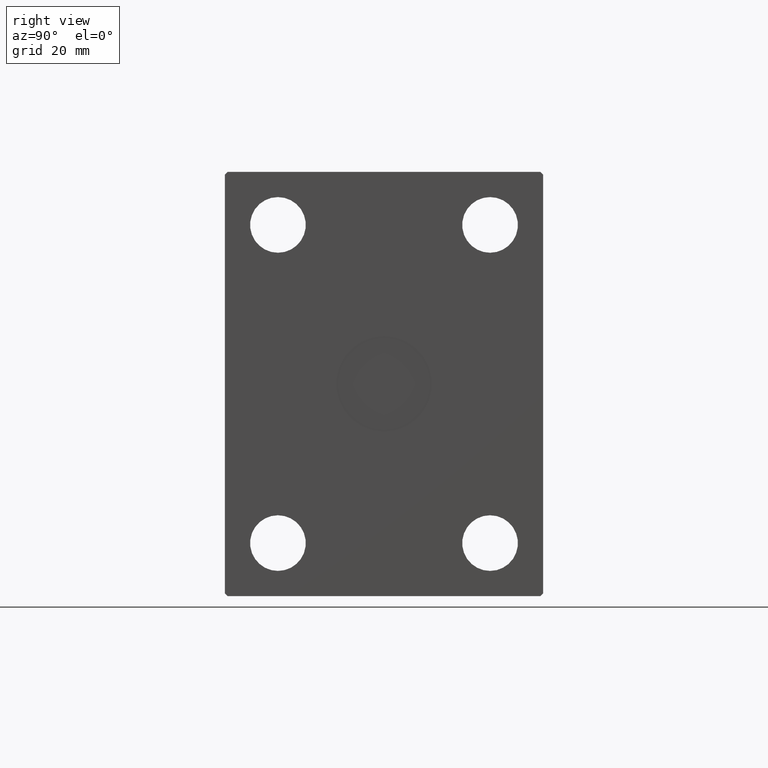
[diagram: clean part render]
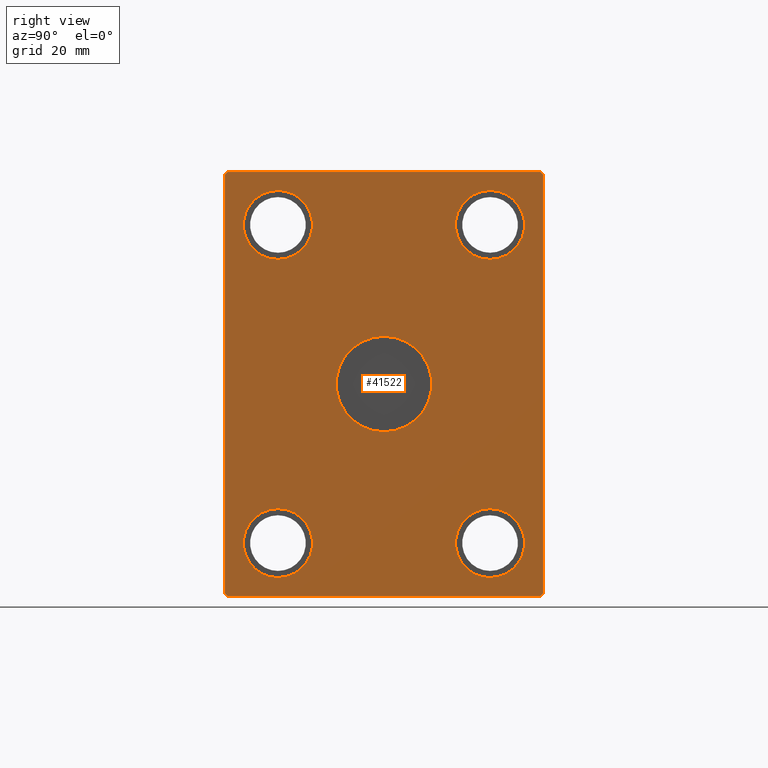
[diagram: same view with one face highlighted and labeled with its STEP entity id]
A machine part, right view. The second image highlights one B-rep face of the part: STEP entity #41522.
In plain terms, the highlighted planar face has unit normal (1, 0, 0).
Its self-contained STEP definition (entity closure, byte-faithful):
#569 = VERTEX_POINT ( 'NONE', #27711 ) ;
#667 = EDGE_CURVE ( 'NONE', #20660, #5189, #742, .T. ) ;
#742 = CIRCLE ( 'NONE', #12397, 13.00000000000001066 ) ;
#1485 = CARTESIAN_POINT ( 'NONE',  ( 190.0000000000000000, -60.00000000000000000, -79.00000000000001421 ) ) ;
#1901 = DIRECTION ( 'NONE',  ( -1.000000000000000000, -0.000000000000000000, -0.000000000000000000 ) ) ;
#2098 = ORIENTED_EDGE ( 'NONE', *, *, #11668, .F. ) ;
#2266 = VERTEX_POINT ( 'NONE', #1485 ) ;
#2381 = CIRCLE ( 'NONE', #26369, 18.00000000000000000 ) ;
#2892 = LINE ( 'NONE', #6328, #33368 ) ;
#3084 = EDGE_LOOP ( 'NONE', ( #10800, #34872 ) ) ;
#3479 = CARTESIAN_POINT ( 'NONE',  ( 190.0000000000000000, -39.99999999999999289, 73.00000000000002842 ) ) ;
#3948 = AXIS2_PLACEMENT_3D ( 'NONE', #13430, #6988, #26745 ) ;
#4132 = VERTEX_POINT ( 'NONE', #32950 ) ;
#4143 = EDGE_LOOP ( 'NONE', ( #37160, #2098 ) ) ;
#4576 = CARTESIAN_POINT ( 'NONE',  ( 190.0000000000000000, 40.00000000000000711, -59.99999999999999289 ) ) ;
#5000 = ORIENTED_EDGE ( 'NONE', *, *, #22246, .T. ) ;
#5032 = LINE ( 'NONE', #11246, #6557 ) ;
#5141 = CARTESIAN_POINT ( 'NONE',  ( 190.0000000000000000, 0.000000000000000000, 0.000000000000000000 ) ) ;
#5189 = VERTEX_POINT ( 'NONE', #9295 ) ;
#5408 = VECTOR ( 'NONE', #20701, 1000.000000000000000 ) ;
#5706 = DIRECTION ( 'NONE',  ( 0.000000000000000000, -1.000000000000000000, -1.176083712526648949E-16 ) ) ;
#5731 = ORIENTED_EDGE ( 'NONE', *, *, #17674, .F. ) ;
#6026 = VERTEX_POINT ( 'NONE', #26466 ) ;
#6079 = ORIENTED_EDGE ( 'NONE', *, *, #38867, .T. ) ;
#6328 = CARTESIAN_POINT ( 'NONE',  ( 190.0000000000000000, 58.99999999999998579, 80.00000000000000000 ) ) ;
#6481 = EDGE_LOOP ( 'NONE', ( #10230, #24071 ) ) ;
#6557 = VECTOR ( 'NONE', #18115, 1000.000000000000000 ) ;
#6988 = DIRECTION ( 'NONE',  ( 1.000000000000000000, -0.000000000000000000, -0.000000000000000000 ) ) ;
#7015 = DIRECTION ( 'NONE',  ( 1.000000000000000000, 0.000000000000000000, 0.000000000000000000 ) ) ;
#7089 = DIRECTION ( 'NONE',  ( 0.000000000000000000, 0.000000000000000000, 1.000000000000000000 ) ) ;
#7118 = CARTESIAN_POINT ( 'NONE',  ( 190.0000000000000000, -39.99999999999999289, -72.99999999999998579 ) ) ;
#7266 = VERTEX_POINT ( 'NONE', #19044 ) ;
#7940 = EDGE_CURVE ( 'NONE', #2266, #7266, #32063, .T. ) ;
#8479 = CARTESIAN_POINT ( 'NONE',  ( 190.0000000000000000, -39.99999999999999289, 47.00000000000000711 ) ) ;
#8929 = VERTEX_POINT ( 'NONE', #3479 ) ;
#9295 = CARTESIAN_POINT ( 'NONE',  ( 190.0000000000000000, 40.00000000000000711, 73.00000000000002842 ) ) ;
#9436 = DIRECTION ( 'NONE',  ( 0.000000000000000000, 0.7071067811865474617, 0.7071067811865474617 ) ) ;
#9488 = EDGE_CURVE ( 'NONE', #10780, #569, #33883, .T. ) ;
#10119 = EDGE_CURVE ( 'NONE', #13076, #40232, #26474, .T. ) ;
#10230 = ORIENTED_EDGE ( 'NONE', *, *, #33451, .F. ) ;
#10426 = ORIENTED_EDGE ( 'NONE', *, *, #41941, .T. ) ;
#10780 = VERTEX_POINT ( 'NONE', #17907 ) ;
#10800 = ORIENTED_EDGE ( 'NONE', *, *, #36780, .T. ) ;
#10862 = DIRECTION ( 'NONE',  ( 0.000000000000000000, -0.7071067811865474617, 0.7071067811865474617 ) ) ;
#11246 = CARTESIAN_POINT ( 'NONE',  ( 190.0000000000000000, -59.00000000000001421, -80.00000000000000000 ) ) ;
#11310 = AXIS2_PLACEMENT_3D ( 'NONE', #25847, #19389, #42394 ) ;
#11569 = DIRECTION ( 'NONE',  ( 0.000000000000000000, 0.000000000000000000, -1.000000000000000000 ) ) ;
#11668 = EDGE_CURVE ( 'NONE', #5189, #20660, #18153, .T. ) ;
#11772 = CARTESIAN_POINT ( 'NONE',  ( 190.0000000000000000, 40.00000000000000711, -59.99999999999999289 ) ) ;
#11780 = PLANE ( 'NONE',  #29456 ) ;
#12024 = ORIENTED_EDGE ( 'NONE', *, *, #27926, .T. ) ;
#12208 = DIRECTION ( 'NONE',  ( 1.000000000000000000, 0.000000000000000000, 0.000000000000000000 ) ) ;
#12337 = VERTEX_POINT ( 'NONE', #15472 ) ;
#12397 = AXIS2_PLACEMENT_3D ( 'NONE', #35006, #38854, #18672 ) ;
#12723 = CIRCLE ( 'NONE', #18217, 18.00000000000000000 ) ;
#13076 = VERTEX_POINT ( 'NONE', #20482 ) ;
#13430 = CARTESIAN_POINT ( 'NONE',  ( 190.0000000000000000, -39.99999999999999289, -59.99999999999999289 ) ) ;
#13531 = CARTESIAN_POINT ( 'NONE',  ( 190.0000000000000000, -39.99999999999999289, 60.00000000000002132 ) ) ;
#13584 = ORIENTED_EDGE ( 'NONE', *, *, #35911, .T. ) ;
#13871 = CARTESIAN_POINT ( 'NONE',  ( 190.0000000000000000, 59.99999999999998579, 79.00000000000000000 ) ) ;
#13952 = LINE ( 'NONE', #20810, #34690 ) ;
#14117 = CARTESIAN_POINT ( 'NONE',  ( 190.0000000000000000, 2.204364238465235428E-15, 18.00000000000000000 ) ) ;
#14924 = CIRCLE ( 'NONE', #3948, 12.99999999999999112 ) ;
#14989 = VECTOR ( 'NONE', #9436, 1000.000000000000114 ) ;
#15021 = CIRCLE ( 'NONE', #36259, 12.99999999999999112 ) ;
#15362 = EDGE_CURVE ( 'NONE', #26656, #37251, #12723, .T. ) ;
#15373 = VECTOR ( 'NONE', #19378, 1000.000000000000000 ) ;
#15472 = CARTESIAN_POINT ( 'NONE',  ( 190.0000000000000000, 59.00000000000000000, -80.00000000000000000 ) ) ;
#15673 = LINE ( 'NONE', #25755, #14989 ) ;
#15890 = EDGE_CURVE ( 'NONE', #6026, #34571, #13952, .T. ) ;
#16078 = EDGE_CURVE ( 'NONE', #20224, #39070, #34625, .T. ) ;
#17663 = EDGE_LOOP ( 'NONE', ( #37320, #5731 ) ) ;
#17665 = DIRECTION ( 'NONE',  ( -1.000000000000000000, -0.000000000000000000, -0.000000000000000000 ) ) ;
#17671 = EDGE_CURVE ( 'NONE', #40232, #4132, #23321, .T. ) ;
#17674 = EDGE_CURVE ( 'NONE', #37251, #26656, #2381, .T. ) ;
#17907 = CARTESIAN_POINT ( 'NONE',  ( 190.0000000000000000, 40.00000000000000711, -47.00000000000000000 ) ) ;
#18115 = DIRECTION ( 'NONE',  ( 0.000000000000000000, 1.000000000000000000, 0.000000000000000000 ) ) ;
#18153 = CIRCLE ( 'NONE', #11310, 13.00000000000001066 ) ;
#18217 = AXIS2_PLACEMENT_3D ( 'NONE', #5141, #12208, #25308 ) ;
#18446 = DIRECTION ( 'NONE',  ( 1.000000000000000000, 0.000000000000000000, 0.000000000000000000 ) ) ;
#18672 = DIRECTION ( 'NONE',  ( 0.000000000000000000, 0.000000000000000000, -1.000000000000000000 ) ) ;
#18677 = CARTESIAN_POINT ( 'NONE',  ( 190.0000000000000000, 40.00000000000000711, 47.00000000000000711 ) ) ;
#19044 = CARTESIAN_POINT ( 'NONE',  ( 190.0000000000000000, -59.00000000000001421, -80.00000000000000000 ) ) ;
#19378 = DIRECTION ( 'NONE',  ( 0.000000000000000000, -8.783410004945858675E-17, 1.000000000000000000 ) ) ;
#19389 = DIRECTION ( 'NONE',  ( 1.000000000000000000, -0.000000000000000000, -0.000000000000000000 ) ) ;
#20224 = VERTEX_POINT ( 'NONE', #31034 ) ;
#20482 = CARTESIAN_POINT ( 'NONE',  ( 190.0000000000000000, 60.00000000000000000, -79.00000000000000000 ) ) ;
#20660 = VERTEX_POINT ( 'NONE', #18677 ) ;
#20701 = DIRECTION ( 'NONE',  ( 0.000000000000000000, 1.317511500741878924E-16, -1.000000000000000000 ) ) ;
#20810 = CARTESIAN_POINT ( 'NONE',  ( 190.0000000000000000, -59.00000000000001421, 79.99999999999998579 ) ) ;
#20842 = AXIS2_PLACEMENT_3D ( 'NONE', #11772, #34121, #21434 ) ;
#20869 = VECTOR ( 'NONE', #10862, 1000.000000000000114 ) ;
#20986 = EDGE_LOOP ( 'NONE', ( #6079, #39056 ) ) ;
#21233 = FACE_BOUND ( 'NONE', #6481, .T. ) ;
#21434 = DIRECTION ( 'NONE',  ( 0.000000000000000000, 0.000000000000000000, 1.000000000000000000 ) ) ;
#22176 = VECTOR ( 'NONE', #22787, 1000.000000000000000 ) ;
#22246 = EDGE_CURVE ( 'NONE', #4132, #6026, #2892, .T. ) ;
#22255 = AXIS2_PLACEMENT_3D ( 'NONE', #31331, #1901, #25294 ) ;
#22787 = DIRECTION ( 'NONE',  ( 0.000000000000000000, 0.7071067811865450192, -0.7071067811865500152 ) ) ;
#23321 = LINE ( 'NONE', #13871, #20869 ) ;
#23559 = CARTESIAN_POINT ( 'NONE',  ( 190.0000000000000000, -39.99999999999999289, -59.99999999999999289 ) ) ;
#23749 = DIRECTION ( 'NONE',  ( 0.000000000000000000, 0.000000000000000000, -1.000000000000000000 ) ) ;
#23934 = CARTESIAN_POINT ( 'NONE',  ( 190.0000000000000000, -60.00000000000002132, 78.99999999999998579 ) ) ;
#24071 = ORIENTED_EDGE ( 'NONE', *, *, #16078, .F. ) ;
#24454 = CARTESIAN_POINT ( 'NONE',  ( 190.0000000000000000, 0.000000000000000000, 0.000000000000000000 ) ) ;
#25294 = DIRECTION ( 'NONE',  ( 0.000000000000000000, 0.000000000000000000, 1.000000000000000000 ) ) ;
#25308 = DIRECTION ( 'NONE',  ( 0.000000000000000000, 0.000000000000000000, -1.000000000000000000 ) ) ;
#25389 = CARTESIAN_POINT ( 'NONE',  ( 190.0000000000000000, -60.00000000000000000, -79.00000000000001421 ) ) ;
#25755 = CARTESIAN_POINT ( 'NONE',  ( 190.0000000000000000, 59.00000000000000000, -80.00000000000000000 ) ) ;
#25777 = EDGE_CURVE ( 'NONE', #8929, #33519, #31181, .T. ) ;
#25847 = CARTESIAN_POINT ( 'NONE',  ( 190.0000000000000000, 40.00000000000000711, 60.00000000000002132 ) ) ;
#26369 = AXIS2_PLACEMENT_3D ( 'NONE', #40497, #7015, #23749 ) ;
#26466 = CARTESIAN_POINT ( 'NONE',  ( 190.0000000000000000, -59.00000000000001421, 79.99999999999998579 ) ) ;
#26474 = LINE ( 'NONE', #35706, #15373 ) ;
#26656 = VERTEX_POINT ( 'NONE', #39235 ) ;
#26745 = DIRECTION ( 'NONE',  ( 0.000000000000000000, 0.000000000000000000, -1.000000000000000000 ) ) ;
#26801 = DIRECTION ( 'NONE',  ( 0.000000000000000000, 0.000000000000000000, -1.000000000000000000 ) ) ;
#27167 = LINE ( 'NONE', #23934, #5408 ) ;
#27711 = CARTESIAN_POINT ( 'NONE',  ( 190.0000000000000000, 40.00000000000000711, -72.99999999999998579 ) ) ;
#27926 = EDGE_CURVE ( 'NONE', #7266, #12337, #5032, .T. ) ;
#28029 = CIRCLE ( 'NONE', #41052, 13.00000000000000533 ) ;
#28127 = FACE_BOUND ( 'NONE', #20986, .T. ) ;
#29147 = ORIENTED_EDGE ( 'NONE', *, *, #15890, .T. ) ;
#29366 = ORIENTED_EDGE ( 'NONE', *, *, #10119, .T. ) ;
#29456 = AXIS2_PLACEMENT_3D ( 'NONE', #24454, #18446, #11569 ) ;
#29599 = DIRECTION ( 'NONE',  ( 1.000000000000000000, -0.000000000000000000, -0.000000000000000000 ) ) ;
#30079 = DIRECTION ( 'NONE',  ( -1.000000000000000000, -0.000000000000000000, -0.000000000000000000 ) ) ;
#30769 = CARTESIAN_POINT ( 'NONE',  ( 190.0000000000000000, -60.00000000000002132, 78.99999999999998579 ) ) ;
#30912 = DIRECTION ( 'NONE',  ( 0.000000000000000000, -0.7071067811865474617, -0.7071067811865474617 ) ) ;
#31034 = CARTESIAN_POINT ( 'NONE',  ( 190.0000000000000000, -39.99999999999999289, -47.00000000000000000 ) ) ;
#31181 = CIRCLE ( 'NONE', #22255, 13.00000000000000533 ) ;
#31331 = CARTESIAN_POINT ( 'NONE',  ( 190.0000000000000000, -39.99999999999999289, 60.00000000000002132 ) ) ;
#31770 = FACE_BOUND ( 'NONE', #17663, .T. ) ;
#32063 = LINE ( 'NONE', #25389, #22176 ) ;
#32569 = AXIS2_PLACEMENT_3D ( 'NONE', #23559, #29599, #26801 ) ;
#32950 = CARTESIAN_POINT ( 'NONE',  ( 190.0000000000000000, 58.99999999999998579, 80.00000000000000000 ) ) ;
#33368 = VECTOR ( 'NONE', #5706, 1000.000000000000000 ) ;
#33451 = EDGE_CURVE ( 'NONE', #39070, #20224, #14924, .T. ) ;
#33519 = VERTEX_POINT ( 'NONE', #8479 ) ;
#33883 = CIRCLE ( 'NONE', #20842, 12.99999999999999112 ) ;
#34121 = DIRECTION ( 'NONE',  ( -1.000000000000000000, -0.000000000000000000, -0.000000000000000000 ) ) ;
#34571 = VERTEX_POINT ( 'NONE', #30769 ) ;
#34625 = CIRCLE ( 'NONE', #32569, 12.99999999999999112 ) ;
#34690 = VECTOR ( 'NONE', #30912, 1000.000000000000114 ) ;
#34872 = ORIENTED_EDGE ( 'NONE', *, *, #25777, .T. ) ;
#34953 = ORIENTED_EDGE ( 'NONE', *, *, #17671, .T. ) ;
#35006 = CARTESIAN_POINT ( 'NONE',  ( 190.0000000000000000, 40.00000000000000711, 60.00000000000002132 ) ) ;
#35388 = CARTESIAN_POINT ( 'NONE',  ( 190.0000000000000000, 59.99999999999998579, 79.00000000000000000 ) ) ;
#35405 = EDGE_LOOP ( 'NONE', ( #34953, #5000, #29147, #10426, #38399, #12024, #13584, #29366 ) ) ;
#35706 = CARTESIAN_POINT ( 'NONE',  ( 190.0000000000000000, 60.00000000000000000, -79.00000000000000000 ) ) ;
#35911 = EDGE_CURVE ( 'NONE', #12337, #13076, #15673, .T. ) ;
#36259 = AXIS2_PLACEMENT_3D ( 'NONE', #4576, #17665, #37848 ) ;
#36780 = EDGE_CURVE ( 'NONE', #33519, #8929, #28029, .T. ) ;
#37160 = ORIENTED_EDGE ( 'NONE', *, *, #667, .F. ) ;
#37251 = VERTEX_POINT ( 'NONE', #14117 ) ;
#37320 = ORIENTED_EDGE ( 'NONE', *, *, #15362, .F. ) ;
#37848 = DIRECTION ( 'NONE',  ( 0.000000000000000000, 0.000000000000000000, 1.000000000000000000 ) ) ;
#38399 = ORIENTED_EDGE ( 'NONE', *, *, #7940, .T. ) ;
#38416 = FACE_BOUND ( 'NONE', #4143, .T. ) ;
#38854 = DIRECTION ( 'NONE',  ( 1.000000000000000000, -0.000000000000000000, -0.000000000000000000 ) ) ;
#38867 = EDGE_CURVE ( 'NONE', #569, #10780, #15021, .T. ) ;
#39056 = ORIENTED_EDGE ( 'NONE', *, *, #9488, .T. ) ;
#39070 = VERTEX_POINT ( 'NONE', #7118 ) ;
#39235 = CARTESIAN_POINT ( 'NONE',  ( 190.0000000000000000, 0.000000000000000000, -18.00000000000000000 ) ) ;
#40232 = VERTEX_POINT ( 'NONE', #35388 ) ;
#40497 = CARTESIAN_POINT ( 'NONE',  ( 190.0000000000000000, 0.000000000000000000, 0.000000000000000000 ) ) ;
#40783 = FACE_OUTER_BOUND ( 'NONE', #35405, .T. ) ;
#41052 = AXIS2_PLACEMENT_3D ( 'NONE', #13531, #30079, #7089 ) ;
#41435 = FACE_BOUND ( 'NONE', #3084, .T. ) ;
#41522 = ADVANCED_FACE ( 'NONE', ( #31770, #41435, #28127, #40783, #21233, #38416 ), #11780, .T. ) ;
#41941 = EDGE_CURVE ( 'NONE', #34571, #2266, #27167, .T. ) ;
#42394 = DIRECTION ( 'NONE',  ( 0.000000000000000000, 0.000000000000000000, -1.000000000000000000 ) ) ;